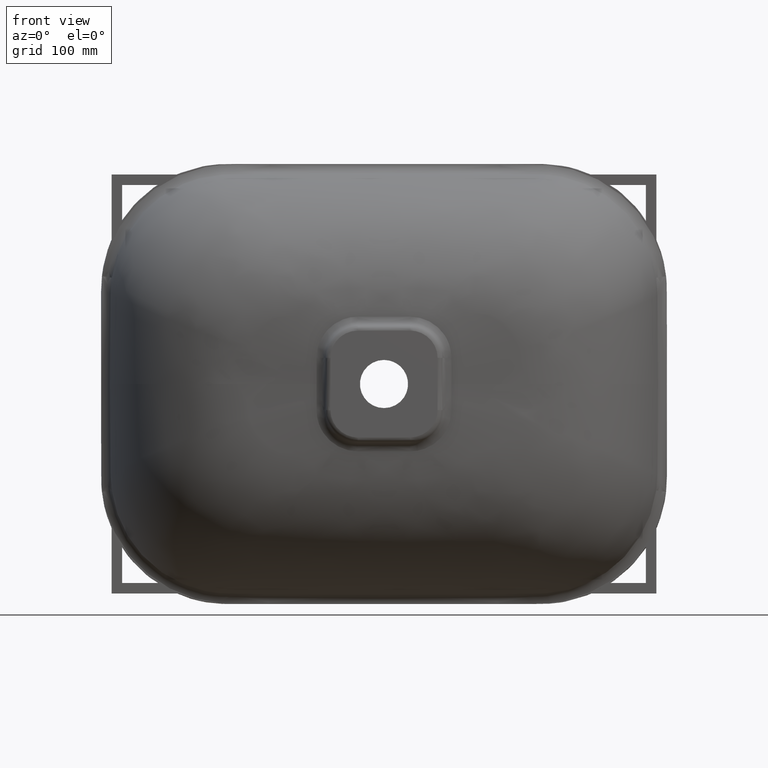
[diagram: clean part render]
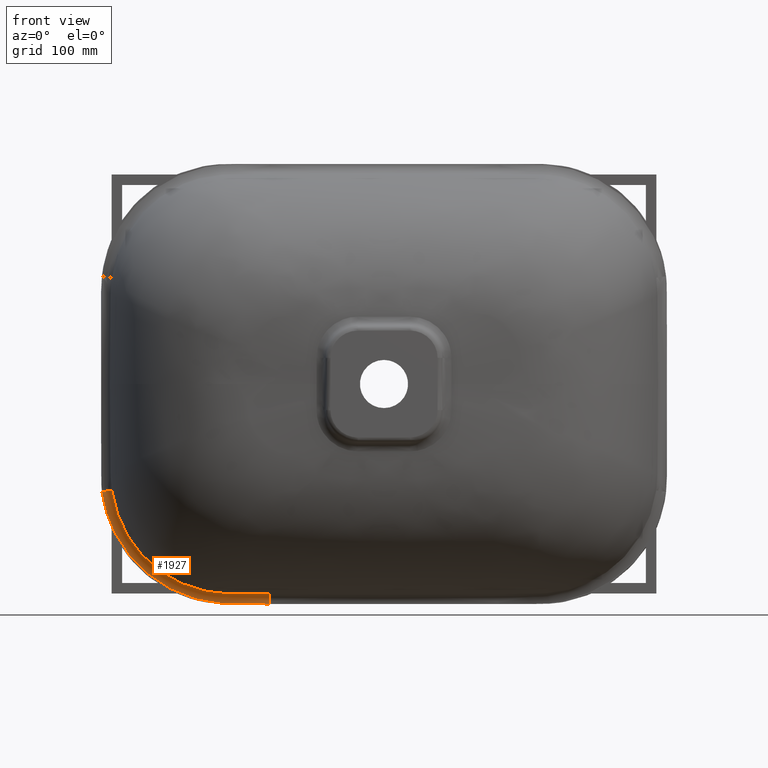
[diagram: same view with one face highlighted and labeled with its STEP entity id]
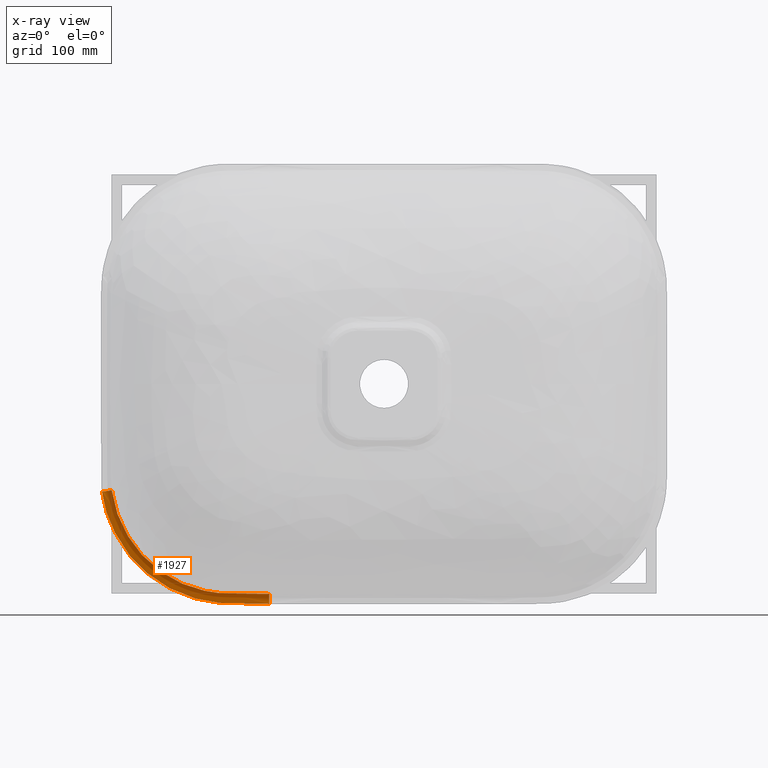
[diagram: x-ray of the same camera — body ghosted, the highlighted face saturated]
A machine part, front view. The second image highlights one B-rep face of the part: STEP entity #1927.
The next image is the same camera in x-ray: the body ghosted, the highlighted face saturated — about 0% of this face is hidden behind the body in this view.
In plain terms, the highlighted face is a freeform B-spline surface patch.
Its self-contained STEP definition (entity closure, byte-faithful):
#71 = CARTESIAN_POINT ( 'NONE',  ( -117.8016387280998300, -16.99170348007772400, -200.3507997638486400 ) ) ;
#204 = CARTESIAN_POINT ( 'NONE',  ( -109.5116194334108100, -10.00000000000165000, -202.6064828579494000 ) ) ;
#401 = CARTESIAN_POINT ( 'NONE',  ( -266.1876830837388800, -10.00000000000066300, -118.0187709172529900 ) ) ;
#781 = CARTESIAN_POINT ( 'NONE',  ( -109.6120045407091700, -10.00000000000165000, -210.0000000009303600 ) ) ;
#1927 = ADVANCED_FACE ( 'NONE', ( #33023 ), #12217, .F. ) ;
#2313 = CARTESIAN_POINT ( 'NONE',  ( -173.8054501678713800, -9.999999999999474200, -206.4255198055541900 ) ) ;
#2386 = CARTESIAN_POINT ( 'NONE',  ( -138.4216120602847900, -10.00000000000011000, -209.5667401965243600 ) ) ;
#2504 = CARTESIAN_POINT ( 'NONE',  ( -209.1148610316308800, -10.00000000000246700, -192.6709876918988300 ) ) ;
#2583 = CARTESIAN_POINT ( 'NONE',  ( -174.9085459541390700, -9.999999999996797200, -206.1738584481921900 ) ) ;
#2706 = CARTESIAN_POINT ( 'NONE',  ( -194.5000986328645900, -9.999999997041664200, -192.7833520702375600 ) ) ;
#2781 = CARTESIAN_POINT ( 'NONE',  ( -243.5980267796259400, -10.00000000000266600, -162.7003143809995700 ) ) ;
#2904 = CARTESIAN_POINT ( 'NONE',  ( -216.5455881784242000, -10.00000000103960900, -180.0151697739314000 ) ) ;
#2976 = CARTESIAN_POINT ( 'NONE',  ( -264.5843226852293200, -10.00000000000050100, -123.3809819152538700 ) ) ;
#3096 = CARTESIAN_POINT ( 'NONE',  ( -148.7786146739838100, -16.63001373807655300, -199.9749490811586000 ) ) ;
#3299 = CARTESIAN_POINT ( 'NONE',  ( -148.5419344983056100, -16.63345981610454800, -199.9778266059107400 ) ) ;
#3985 = CARTESIAN_POINT ( 'NONE',  ( -236.4127754794706700, -16.01407864590316900, -157.0001735292096300 ) ) ;
#4013 = VERTEX_POINT ( 'NONE', #35843 ) ;
#4034 = CARTESIAN_POINT ( 'NONE',  ( -240.2199632549563000, -16.06348631989333200, -151.9077543122950800 ) ) ;
#4178 = CARTESIAN_POINT ( 'NONE',  ( -261.4885423727412800, -9.999999972678796900, -105.9181486950502900 ) ) ;
#4227 = CARTESIAN_POINT ( 'NONE',  ( -208.5311982345085400, -15.93603661310545900, -182.2298427479464900 ) ) ;
#4351 = CARTESIAN_POINT ( 'NONE',  ( -118.4768675996696200, -10.00000000000165000, -209.8796377724916600 ) ) ;
#4413 = CARTESIAN_POINT ( 'NONE',  ( -163.5340420470743100, -16.38050254530081100, -198.9261056051077800 ) ) ;
#4542 = CARTESIAN_POINT ( 'NONE',  ( -118.3384036264261400, -16.98667808527179800, -200.3450522701606900 ) ) ;
#4743 = CARTESIAN_POINT ( 'NONE',  ( -268.6792162120060500, -9.999999999999955600, -107.2329245653158700 ) ) ;
#4930 = CARTESIAN_POINT ( 'NONE',  ( -109.4822025118279800, -17.06959305274223500, -200.4398814579021500 ) ) ;
#4939 = CARTESIAN_POINT ( 'NONE',  ( -259.3495257307811200, -9.999999997512675900, -116.1525617619242300 ) ) ;
#5124 = CARTESIAN_POINT ( 'NONE',  ( -147.9537338392405600, -16.64110222036643800, -199.9852891002940700 ) ) ;
#5133 = CARTESIAN_POINT ( 'NONE',  ( -256.9624051473673500, -10.00000000132275200, -124.2925172517322200 ) ) ;
#5209 = EDGE_CURVE ( 'NONE', #47749, #31597, #47929, .T. ) ;
#5510 = CARTESIAN_POINT ( 'NONE',  ( -143.8017923498996400, -16.69412587289311700, -200.0376688555597000 ) ) ;
#5519 = AXIS2_PLACEMENT_3D ( 'NONE', #21327, #52966, #25859 ) ;
#6658 = CARTESIAN_POINT ( 'NONE',  ( -148.7398844826651300, -9.999999999999625200, -209.3920935185998600 ) ) ;
#6688 = EDGE_CURVE ( 'NONE', #47749, #4013, #26618, .T. ) ;
#6856 = CARTESIAN_POINT ( 'NONE',  ( -211.5851025189352300, -15.92469634867683600, -180.2978788117623300 ) ) ;
#6931 = CARTESIAN_POINT ( 'NONE',  ( -145.6236562328544700, -10.00000000000130000, -209.4458424572504800 ) ) ;
#7056 = CARTESIAN_POINT ( 'NONE',  ( -149.0168798870068700, -10.00000000000008000, -209.3872221849773900 ) ) ;
#7130 = CARTESIAN_POINT ( 'NONE',  ( -184.6790640959575000, -10.00000000000109100, -203.5520617297348200 ) ) ;
#7251 = CARTESIAN_POINT ( 'NONE',  ( -148.8865564934678200, -9.999999999921064000, -202.3474294311918100 ) ) ;
#7324 = CARTESIAN_POINT ( 'NONE',  ( -245.6661493753830100, -10.00000000000154200, -160.0191108658193000 ) ) ;
#7448 = CARTESIAN_POINT ( 'NONE',  ( -181.8596223614519800, -16.13773388705002500, -194.7630775268472700 ) ) ;
#7523 = CARTESIAN_POINT ( 'NONE',  ( -266.1876830832137000, -10.00000000000162400, -118.0187709170891300 ) ) ;
#7648 = CARTESIAN_POINT ( 'NONE',  ( -165.6572444263224200, -16.35001478613514800, -198.5465311759854500 ) ) ;
#7847 = CARTESIAN_POINT ( 'NONE',  ( -189.6385111572564300, -16.05800541323567600, -191.9904802828172000 ) ) ;
#8528 = CARTESIAN_POINT ( 'NONE',  ( -257.9280250279666700, -10.00000000147143100, -121.2461367372699200 ) ) ;
#8576 = CARTESIAN_POINT ( 'NONE',  ( -237.7203969891634800, -16.02969535065867700, -155.3092264220391600 ) ) ;
#8719 = CARTESIAN_POINT ( 'NONE',  ( -258.8177413980186000, -9.999999997059303400, -118.1917177340851900 ) ) ;
#8769 = CARTESIAN_POINT ( 'NONE',  ( -203.1210154313859800, -15.95828084176517700, -185.5598042001395500 ) ) ;
#8907 = CARTESIAN_POINT ( 'NONE',  ( -263.1294971624770900, -10.00000000000054200, -127.6534677739095100 ) ) ;
#8958 = CARTESIAN_POINT ( 'NONE',  ( -155.2328427687638500, -16.51555964424655800, -199.7380293915275000 ) ) ;
#9089 = CARTESIAN_POINT ( 'NONE',  ( -140.4803075271075300, -16.73548169320614000, -200.0791925795082600 ) ) ;
#9099 = CARTESIAN_POINT ( 'NONE',  ( -254.8491918782976300, -10.00000000346020500, -130.3089819761897000 ) ) ;
#9288 = CARTESIAN_POINT ( 'NONE',  ( -259.2973419781409300, -16.95845430867373000, -105.5435066344179100 ) ) ;
#9471 = CARTESIAN_POINT ( 'NONE',  ( -147.9946571289898100, -9.999999999939005200, -202.3532079439271200 ) ) ;
#9480 = CARTESIAN_POINT ( 'NONE',  ( -254.3260934436163400, -16.47574737579324000, -124.4774150050024600 ) ) ;
#9666 = CARTESIAN_POINT ( 'NONE',  ( -146.6101417837067800, -10.00000000021397500, -202.3628906392257500 ) ) ;
#9858 = CARTESIAN_POINT ( 'NONE',  ( -148.2305337309212200, -16.63751169970567300, -199.9817791134661000 ) ) ;
#11196 = CARTESIAN_POINT ( 'NONE',  ( -148.7052598236745100, -10.00000000000101800, -209.3926942235514400 ) ) ;
#11391 = CARTESIAN_POINT ( 'NONE',  ( -200.8750934421080400, -15.97121272111377100, -186.7838058844532400 ) ) ;
#11465 = CARTESIAN_POINT ( 'NONE',  ( -148.3936381309607400, -10.00000000000068900, -209.3981089462623100 ) ) ;
#11586 = CARTESIAN_POINT ( 'NONE',  ( -148.7232007899408200, -9.999999999989471500, -202.3479923965037100 ) ) ;
#11662 = CARTESIAN_POINT ( 'NONE',  ( -197.1762204767231300, -10.00000000000260100, -198.7835304471154200 ) ) ;
#11755 = VERTEX_POINT ( 'NONE', #47000 ) ;
#11785 = CARTESIAN_POINT ( 'NONE',  ( -182.6388328435805300, -9.999999990466752900, -197.2141746391034500 ) ) ;
#11860 = CARTESIAN_POINT ( 'NONE',  ( -248.3093753856685500, -9.999999999999984000, -156.3841395375632100 ) ) ;
#11987 = CARTESIAN_POINT ( 'NONE',  ( -205.8319414925217600, -10.00000000519215200, -187.0461295086295800 ) ) ;
#12058 = CARTESIAN_POINT ( 'NONE',  ( -268.6792188953581900, -9.999999999999149100, -107.2329058983216300 ) ) ;
#12179 = CARTESIAN_POINT ( 'NONE',  ( -193.4418688747361200, -16.02464114695278100, -190.3952824065494800 ) ) ;
#12217 =( BOUNDED_SURFACE ( )  B_SPLINE_SURFACE ( 3, 2, ( 
 ( #54695, #31355, #49956 ),
 ( #9288, #4178, #4743 ),
 ( #49203, #26444, #45024 ),
 ( #18332, #4939, #401 ),
 ( #13433, #8719, #40660 ),
 ( #35911, #8528, #40278 ),
 ( #40470, #36104, #44644 ),
 ( #45403, #5133, #31931 ),
 ( #9480, #49583, #8907 ),
 ( #31546, #9099, #49395 ),
 ( #58464, #22102, #17582 ),
 ( #27205, #35716, #32123 ),
 ( #13244, #22484, #17771 ),
 ( #13813, #54499, #44834 ),
 ( #50151, #30978, #54122 ),
 ( #14008, #35529, #31739 ),
 ( #27394, #45211, #36486 ),
 ( #40854, #13054, #36293 ),
 ( #3985, #27587, #18143 ),
 ( #18523, #53549, #17959 ),
 ( #27014, #43165, #15721 ),
 ( #29496, #52863, #20440 ),
 ( #15914, #12374, #43563 ),
 ( #57401, #2904, #51874 ),
 ( #6856, #43956, #43363 ),
 ( #47923, #11987, #2504 ),
 ( #11391, #52665, #30289 ),
 ( #12179, #2706, #29300 ),
 ( #7847, #34250, #16705 ),
 ( #7448, #11785, #25563 ),
 ( #38999, #48126, #47329 ),
 ( #21029, #25162, #42968 ),
 ( #39398, #52469, #2313 ),
 ( #56607, #57205, #24963 ),
 ( #25365, #34053, #47723 ),
 ( #7648, #33655, #52066 ),
 ( #29693, #43761, #16899 ),
 ( #34848, #24768, #21227 ),
 ( #56803, #57007, #56412 ),
 ( #39198, #38604, #34447 ),
 ( #38204, #34646, #38804 ),
 ( #47528, #7251, #7056 ),
 ( #3096, #29892, #20634 ),
 ( #52266, #11586, #16308 ),
 ( #38402, #16504, #16110 ),
 ( #30089, #20832, #6658 ),
 ( #3299, #33853, #11196 ),
 ( #9858, #41235, #18514 ),
 ( #5124, #9471, #54879 ),
 ( #27196, #58452, #40651 ),
 ( #41040, #9666, #23239 ),
 ( #36477, #18903, #23433 ),
 ( #5510, #26813, #22849 ),
 ( #9089, #27003, #22664 ),
 ( #31536, #18323, #45588 ),
 ( #55075, #32313, #54490 ),
 ( #4542, #40458, #4351 ),
 ( #4930, #204, #781 ) ),
 .UNSPECIFIED., .F., .F., .F. ) 
 B_SPLINE_SURFACE_WITH_KNOTS ( ( 4, 2, 2, 2, 2, 2, 2, 2, 2, 2, 2, 2, 2, 2, 2, 2, 2, 2, 2, 2, 2, 2, 2, 2, 2, 2, 2, 2, 4 ),
 ( 3, 3 ),
 ( 0.2131028846853375000, 0.2262844475938892700, 0.2328752290481651600, 0.2361706197753030700, 0.2394660105024410100, 0.2526475734109927500, 0.2658291363195445200, 0.2724199177738204100, 0.2757153085009583800, 0.2790106992280962900, 0.2921922621366480600, 0.3053738250451998300, 0.3185553879537515500, 0.3317369508623032600, 0.3449185137708550300, 0.3581000766794068000, 0.3613954674065447100, 0.3646908581336826800, 0.3712816395879585700, 0.3844632024965103400, 0.3848751263374025600, 0.3850810882578487000, 0.3851840692180717500, 0.3852870501782947900, 0.3861108978600792900, 0.3877585932236482500, 0.3910539839507862200, 0.3976447654050621100, 0.4240078912221655900 ),
 ( 0.0000000000000000000, 1.000000000000000000 ),
 .UNSPECIFIED. ) 
 GEOMETRIC_REPRESENTATION_ITEM ( )  RATIONAL_B_SPLINE_SURFACE ( (
 ( 1.000000000000000000, 0.8041213644005464900, 1.000000000000000000),
 ( 1.000000000000000000, 0.8075153276364069900, 1.000000000000000000),
 ( 1.000000000000000000, 0.8110213399071208900, 1.000000000000000000),
 ( 1.000000000000000000, 0.8158844865106138500, 1.000000000000000000),
 ( 1.000000000000000000, 0.8174372256748035900, 1.000000000000000000),
 ( 1.000000000000000000, 0.8196181977845368200, 1.000000000000000000),
 ( 1.000000000000000000, 0.8203207103774314800, 1.000000000000000000),
 ( 1.000000000000000000, 0.8216732689038605000, 1.000000000000000000),
 ( 1.000000000000000000, 0.8223217210596793800, 1.000000000000000000),
 ( 1.000000000000000000, 0.8254110462344926800, 1.000000000000000000),
 ( 1.000000000000000000, 0.8274047738713560300, 1.000000000000000000),
 ( 1.000000000000000000, 0.8306891015027521000, 1.000000000000000000),
 ( 1.000000000000000000, 0.8320975991429976300, 1.000000000000000000),
 ( 1.000000000000000000, 0.8339464462914987200, 1.000000000000000000),
 ( 1.000000000000000000, 0.8345140238758476100, 1.000000000000000000),
 ( 1.000000000000000000, 0.8352940136438231600, 1.000000000000000000),
 ( 1.000000000000000000, 0.8355421023820029900, 1.000000000000000000),
 ( 1.000000000000000000, 0.8360145804861104400, 1.000000000000000000),
 ( 1.000000000000000000, 0.8362392675164316300, 1.000000000000000000),
 ( 1.000000000000000000, 0.8372980709974982000, 1.000000000000000000),
 ( 1.000000000000000000, 0.8379463673336831100, 1.000000000000000000),
 ( 1.000000000000000000, 0.8388401449896107900, 1.000000000000000000),
 ( 1.000000000000000000, 0.8390625011359540400, 1.000000000000000000),
 ( 1.000000000000000000, 0.8390959246226334900, 1.000000000000000000),
 ( 1.000000000000000000, 0.8389072287976098200, 1.000000000000000000),
 ( 1.000000000000000000, 0.8381167587727960100, 1.000000000000000000),
 ( 1.000000000000000000, 0.8375201497139113100, 1.000000000000000000),
 ( 1.000000000000000000, 0.8359237881556613700, 1.000000000000000000),
 ( 1.000000000000000000, 0.8349258402214812000, 1.000000000000000000),
 ( 1.000000000000000000, 0.8325351248301111600, 1.000000000000000000),
 ( 1.000000000000000000, 0.8311428734712587000, 1.000000000000000000),
 ( 1.000000000000000000, 0.8291507832483209200, 1.000000000000000000),
 ( 1.000000000000000000, 0.8287392979024217300, 1.000000000000000000),
 ( 1.000000000000000000, 0.8278962073218848500, 1.000000000000000000),
 ( 1.000000000000000000, 0.8274640028257238500, 1.000000000000000000),
 ( 1.000000000000000000, 0.8261356092172972300, 1.000000000000000000),
 ( 1.000000000000000000, 0.8252076766426734700, 1.000000000000000000),
 ( 1.000000000000000000, 0.8222970722090772200, 1.000000000000000000),
 ( 1.000000000000000000, 0.8201881323851676300, 1.000000000000000000),
 ( 1.000000000000000000, 0.8178330706254070000, 1.000000000000000000),
 ( 1.000000000000000000, 0.8177615337506701800, 1.000000000000000000),
 ( 1.000000000000000000, 0.8176539708815412400, 1.000000000000000000),
 ( 1.000000000000000000, 0.8176180736684448600, 1.000000000000000000),
 ( 1.000000000000000000, 0.8175641633958007400, 1.000000000000000000),
 ( 1.000000000000000000, 0.8175540253386760500, 1.000000000000000000),
 ( 1.000000000000000000, 0.8175264696394249900, 1.000000000000000000),
 ( 1.000000000000000000, 0.8175126967720817200, 1.000000000000000000),
 ( 1.000000000000000000, 0.8173887858007357100, 1.000000000000000000),
 ( 1.000000000000000000, 0.8172789615364874900, 1.000000000000000000),
 ( 1.000000000000000000, 0.8169504449253653900, 1.000000000000000000),
 ( 1.000000000000000000, 0.8167327087533041700, 1.000000000000000000),
 ( 1.000000000000000000, 0.8160833222697828600, 1.000000000000000000),
 ( 1.000000000000000000, 0.8156554940915218300, 1.000000000000000000),
 ( 1.000000000000000000, 0.8143872728768764000, 1.000000000000000000),
 ( 1.000000000000000000, 0.8135621442735012600, 1.000000000000000000),
 ( 1.000000000000000000, 0.8095378421619058300, 1.000000000000000000),
 ( 1.000000000000000000, 0.8066428148032114300, 1.000000000000000000),
 ( 1.000000000000000000, 0.8040648900200597600, 1.000000000000000000) ) ) 
 REPRESENTATION_ITEM ( '' )  SURFACE ( )  );
#12374 = CARTESIAN_POINT ( 'NONE',  ( -223.1610761525828900, -9.999999998956273100, -174.7390038793268200 ) ) ;
#12914 = CARTESIAN_POINT ( 'NONE',  ( -256.9860576998154900, -16.67723593418660900, -115.9068813281692500 ) ) ;
#13054 = CARTESIAN_POINT ( 'NONE',  ( -239.1183778347489700, -9.999999999420698100, -157.7781398106820100 ) ) ;
#13102 = CARTESIAN_POINT ( 'NONE',  ( -235.7641173143867900, -16.00687544312196300, -157.8154648446519600 ) ) ;
#13244 = CARTESIAN_POINT ( 'NONE',  ( -245.2522267956507800, -16.15230209334172100, -144.1821715917601200 ) ) ;
#13296 = CARTESIAN_POINT ( 'NONE',  ( -191.8373525268733300, -16.03818251917640900, -191.0904909839815700 ) ) ;
#13433 = CARTESIAN_POINT ( 'NONE',  ( -256.5401067996414800, -16.63596992005026500, -117.5326423267994500 ) ) ;
#13485 = CARTESIAN_POINT ( 'NONE',  ( -151.0770393606699400, -16.58829097582326300, -199.9303923428020700 ) ) ;
#13813 = CARTESIAN_POINT ( 'NONE',  ( -241.9178176078008600, -16.09067409092895300, -149.4169302200866400 ) ) ;
#14008 = CARTESIAN_POINT ( 'NONE',  ( -238.9387544878391600, -16.04567956633336600, -153.6720030328451700 ) ) ;
#15106 = B_SPLINE_CURVE_WITH_KNOTS ( 'NONE', 3,
 ( #53408, #57946, #39944, #12914, #44502, #17441, #49063, #21960, #53599, #26491, #58134, #31026, #4034, #35576, #8576, #40136, #13102, #44692, #17631, #49254, #22151, #53790, #26686, #58324, #31218, #4227, #35770, #8769, #40328, #13296, #44885, #17821, #49445, #22345, #53983, #26875, #58515, #31406, #4413, #35961, #8958, #40519, #13485, #45074, #18008, #49631, #22535, #54171, #27062, #71, #31596 ),
 .UNSPECIFIED., .F., .F.,
 ( 4, 2, 2, 2, 2, 2, 2, 2, 2, 2, 2, 2, 2, 2, 2, 2, 2, 2, 2, 2, 2, 2, 2, 1, 2, 4 ),
 ( 0.01473164428857015900, 0.02730021648599836900, 0.03358450258471247500, 0.03986878868342658100, 0.05243736088085479400, 0.06500593307828300700, 0.07129021917699714100, 0.07443236222635421500, 0.07757450527571128900, 0.09014307747313959900, 0.1027116496705679100, 0.1089959357692820700, 0.1121380788186391600, 0.1152802218679962200, 0.1278487940654247900, 0.1404173662628533700, 0.1467016523615676500, 0.1498437954109248500, 0.1529859384602820500, 0.1655545106577107600, 0.1718387967564251100, 0.1749809398057823000, 0.1765520113304608900, 0.1781230828551394800, 0.1906916550525683500, 0.2158287994474262200 ),
 .UNSPECIFIED. ) ;
#15721 = CARTESIAN_POINT ( 'NONE',  ( -237.0488428557266900, -9.999999999999913000, -170.4132986883529100 ) ) ;
#15752 = EDGE_CURVE ( 'NONE', #4013, #11755, #57098, .T. ) ;
#15913 = CARTESIAN_POINT ( 'NONE',  ( -109.6120045407091400, -10.00000000000000200, -210.0000000009307300 ) ) ;
#15914 = CARTESIAN_POINT ( 'NONE',  ( -221.4369880997964500, -15.91948238834250700, -172.7298776125344700 ) ) ;
#15989 = CARTESIAN_POINT ( 'NONE',  ( -153.9329004716066400, -9.999999999999928900, -209.2779673755296100 ) ) ;
#16110 = CARTESIAN_POINT ( 'NONE',  ( -148.8091337920623400, -9.999999999999625200, -209.3908918070756900 ) ) ;
#16188 = CARTESIAN_POINT ( 'NONE',  ( -209.1148610321888600, -10.00000000000174800, -192.6709876935821900 ) ) ;
#16308 = CARTESIAN_POINT ( 'NONE',  ( -148.8437584750936100, -10.00000000000268900, -209.3902919477339400 ) ) ;
#16382 = CARTESIAN_POINT ( 'NONE',  ( -253.1954835947514100, -10.00000000000035700, -148.8950832087181200 ) ) ;
#16504 = CARTESIAN_POINT ( 'NONE',  ( -148.6869007875098700, -10.00000000002398800, -202.3483579754866900 ) ) ;
#16705 = CARTESIAN_POINT ( 'NONE',  ( -193.0724228810933000, -9.999999999996791900, -200.5216890741281200 ) ) ;
#16899 = CARTESIAN_POINT ( 'NONE',  ( -164.9841687011409600, -9.999999999998186300, -208.0789055372788100 ) ) ;
#17441 = CARTESIAN_POINT ( 'NONE',  ( -255.1902256561069500, -16.52999565143963400, -121.9757729441866900 ) ) ;
#17582 = CARTESIAN_POINT ( 'NONE',  ( -259.3879961744596600, -9.999999999997831100, -137.0393946880648200 ) ) ;
#17631 = CARTESIAN_POINT ( 'NONE',  ( -229.5779419126271000, -15.95146410192755900, -164.9993988289622800 ) ) ;
#17771 = CARTESIAN_POINT ( 'NONE',  ( -253.1954835948473300, -10.00000000000072500, -148.8950832091688600 ) ) ;
#17821 = CARTESIAN_POINT ( 'NONE',  ( -182.0051432208347500, -16.13747978960454100, -194.6583069065262600 ) ) ;
#17959 = CARTESIAN_POINT ( 'NONE',  ( -240.0518677389907800, -10.00000000000022600, -167.0878711474472600 ) ) ;
#18008 = CARTESIAN_POINT ( 'NONE',  ( -148.9978220466282200, -16.62752934182176600, -199.9720406079785600 ) ) ;
#18083 = ORIENTED_EDGE ( 'NONE', *, *, #25594, .F. ) ;
#18143 = CARTESIAN_POINT ( 'NONE',  ( -243.5980267798268800, -10.00000000000022600, -162.7003143808743500 ) ) ;
#18323 = CARTESIAN_POINT ( 'NONE',  ( -138.3018869639296900, -10.00000000122858900, -202.4204132439755600 ) ) ;
#18332 = CARTESIAN_POINT ( 'NONE',  ( -257.0822091703356000, -16.68670264702672400, -115.5402197825312100 ) ) ;
#18514 = CARTESIAN_POINT ( 'NONE',  ( -148.3936378541687000, -10.00000000000101800, -209.3980992095824300 ) ) ;
#18523 = CARTESIAN_POINT ( 'NONE',  ( -233.1406579080853000, -15.97865315658936500, -161.0732120119556300 ) ) ;
#18903 = CARTESIAN_POINT ( 'NONE',  ( -144.9484274715583200, -9.999999999567894100, -202.3744820837881400 ) ) ;
#20319 = CARTESIAN_POINT ( 'NONE',  ( -109.6120045407091400, -10.00000000000000200, -210.0000000009307300 ) ) ;
#20440 = CARTESIAN_POINT ( 'NONE',  ( -230.7156832148573600, -9.999999999999913000, -176.7005704943354700 ) ) ;
#20510 = CARTESIAN_POINT ( 'NONE',  ( -164.9841687008896500, -9.999999999998523800, -208.0789055372289900 ) ) ;
#20634 = CARTESIAN_POINT ( 'NONE',  ( -148.9476323089224900, -10.00000000000268900, -209.3884847981936700 ) ) ;
#20711 = CARTESIAN_POINT ( 'NONE',  ( -220.4046297625203000, -9.999999999999355200, -185.2297010855920400 ) ) ;
#20832 = CARTESIAN_POINT ( 'NONE',  ( -148.6176799623245900, -9.999999999975267800, -202.3488431598175900 ) ) ;
#20906 = CARTESIAN_POINT ( 'NONE',  ( -259.3879961736328700, -10.00000000000131300, -137.0393946878882900 ) ) ;
#21029 = CARTESIAN_POINT ( 'NONE',  ( -172.8052093186459500, -16.25018274725438900, -197.1448977281378100 ) ) ;
#21227 = CARTESIAN_POINT ( 'NONE',  ( -158.3575026893963700, -9.999999999998186300, -208.9423866400054800 ) ) ;
#21327 = CARTESIAN_POINT ( 'NONE',  ( -269.3054738966994300, -20.00000000000039100, -102.8867415546644000 ) ) ;
#21960 = CARTESIAN_POINT ( 'NONE',  ( -252.3237630072337900, -16.36363914979110800, -129.9357335054753800 ) ) ;
#22102 = CARTESIAN_POINT ( 'NONE',  ( -253.2111823765810400, -9.999999997524433600, -134.2155247558303300 ) ) ;
#22151 = CARTESIAN_POINT ( 'NONE',  ( -220.4339054301992700, -15.91800484675679300, -173.5841262310821900 ) ) ;
#22345 = CARTESIAN_POINT ( 'NONE',  ( -176.9556728743419900, -16.19713265882028000, -196.1186871309531300 ) ) ;
#22484 = CARTESIAN_POINT ( 'NONE',  ( -247.4631380129250100, -9.999999998983693000, -145.4858529562921500 ) ) ;
#22535 = CARTESIAN_POINT ( 'NONE',  ( -143.2786575361119800, -16.70157586813982000, -200.0445216195350600 ) ) ;
#22664 = CARTESIAN_POINT ( 'NONE',  ( -140.6376406008187700, -10.00000000000083300, -209.5300667440838800 ) ) ;
#22849 = CARTESIAN_POINT ( 'NONE',  ( -143.9616556478535500, -10.00000000000083300, -209.4740799302701100 ) ) ;
#22858 = AXIS2_PLACEMENT_3D ( 'NONE', #47753, #52095, #56833 ) ;
#23239 = CARTESIAN_POINT ( 'NONE',  ( -146.7316498777476000, -9.999999999998729900, -209.4267802058577400 ) ) ;
#23433 = CARTESIAN_POINT ( 'NONE',  ( -145.0696560377919900, -9.999999999998729900, -209.4552549483122200 ) ) ;
#24768 = CARTESIAN_POINT ( 'NONE',  ( -157.6977176497534300, -10.00000000074186300, -202.0493780211058100 ) ) ;
#24963 = CARTESIAN_POINT ( 'NONE',  ( -171.6017766829114900, -9.999999999999474200, -206.8967973001533100 ) ) ;
#25036 = CARTESIAN_POINT ( 'NONE',  ( -170.4994970062655600, -9.999999999998085100, -207.1168553007094600 ) ) ;
#25162 = CARTESIAN_POINT ( 'NONE',  ( -173.3782721034556000, -9.999999999733436300, -199.6073938233416500 ) ) ;
#25239 = CARTESIAN_POINT ( 'NONE',  ( -230.7156832138611500, -10.00000000000035000, -176.7005704934885800 ) ) ;
#25365 = CARTESIAN_POINT ( 'NONE',  ( -168.7209424716047300, -16.30607040351046100, -197.9955108854306600 ) ) ;
#25438 = CARTESIAN_POINT ( 'NONE',  ( -263.1294971623040600, -10.00000000000029300, -127.6534677738534800 ) ) ;
#25563 = CARTESIAN_POINT ( 'NONE',  ( -184.6790640972445200, -9.999999999996791900, -203.5520617321497500 ) ) ;
#25594 = EDGE_CURVE ( 'NONE', #11755, #31597, #15106, .T. ) ;
#25859 = DIRECTION ( 'NONE',  ( -0.9897774155219586400, 0.0000000000000000000, -0.1426207128108397900 ) ) ;
#26444 = CARTESIAN_POINT ( 'NONE',  ( -260.7739196509352800, -10.00000000500647200, -110.0148458859692900 ) ) ;
#26491 = CARTESIAN_POINT ( 'NONE',  ( -246.9087911578185100, -16.19042586122626700, -141.2658024078263000 ) ) ;
#26618 = B_SPLINE_CURVE_WITH_KNOTS ( 'NONE', 3,
 ( #20319, #47405, #29377, #2386, #33931, #6931, #38479, #11465, #43042, #15989, #47601, #20510, #52139, #25036, #56679, #29570, #2583, #34126, #7130, #38678, #11662, #43240, #16188, #47799, #20711, #52341, #25239, #56880, #29770, #2781, #34327, #7324, #38877, #11860, #43439, #16382, #48005, #20906, #52544, #25438, #57081, #29965, #2976, #34521, #7523, #39072, #12058, #43634 ),
 .UNSPECIFIED., .F., .F.,
 ( 4, 2, 1, 1, 2, 2, 2, 2, 2, 2, 2, 2, 2, 2, 2, 2, 2, 2, 2, 2, 2, 2, 2, 2, 4 ),
 ( 1.386568128191315100, 1.413091437777452400, 1.419722265173986900, 1.423037678872253900, 1.424695385721387500, 1.426353092570521000, 1.439614747363588500, 1.446245574760122400, 1.449560988458389300, 1.452876402156656000, 1.466138056949723800, 1.479399711742791300, 1.492661366535859000, 1.505923021328926500, 1.519184676121994300, 1.532446330915061800, 1.535761744613328700, 1.539077158311595600, 1.545707985708129500, 1.558969640501197500, 1.572231295294265200, 1.575546708992532100, 1.578862122690799100, 1.585492950087332900, 1.598754604880400700 ),
 .UNSPECIFIED. ) ;
#26686 = CARTESIAN_POINT ( 'NONE',  ( -213.7789019072777400, -15.92174569503857900, -178.6871189412537400 ) ) ;
#26813 = CARTESIAN_POINT ( 'NONE',  ( -143.8409362186217200, -9.999999999516646200, -202.3821816140962000 ) ) ;
#26875 = CARTESIAN_POINT ( 'NONE',  ( -173.8844039711859200, -16.23601990646226400, -196.8940318990194700 ) ) ;
#27003 = CARTESIAN_POINT ( 'NONE',  ( -140.5167269440766800, -10.00000000097070400, -202.4052000848936400 ) ) ;
#27014 = CARTESIAN_POINT ( 'NONE',  ( -230.3679753291565100, -15.95692170791296700, -164.1577912186269300 ) ) ;
#27062 = CARTESIAN_POINT ( 'NONE',  ( -126.1208194692760900, -16.90447591633308400, -200.2545051341060400 ) ) ;
#27196 = CARTESIAN_POINT ( 'NONE',  ( -147.1233364863707300, -16.65184037016420900, -199.9958086197036100 ) ) ;
#27205 = CARTESIAN_POINT ( 'NONE',  ( -247.2753690827691500, -16.19916626933721600, -140.5874223344471300 ) ) ;
#27394 = CARTESIAN_POINT ( 'NONE',  ( -238.3202449255739200, -16.03738901965994800, -154.5107172855725800 ) ) ;
#27587 = CARTESIAN_POINT ( 'NONE',  ( -238.4607282494135600, -9.999999999773123700, -158.6244536052018400 ) ) ;
#29300 = CARTESIAN_POINT ( 'NONE',  ( -197.1762204767124400, -9.999999999995379700, -198.7835304481451100 ) ) ;
#29377 = CARTESIAN_POINT ( 'NONE',  ( -127.3413721065309800, -10.00000000000010700, -209.7466865525815100 ) ) ;
#29496 = CARTESIAN_POINT ( 'NONE',  ( -224.5182999798393300, -15.92694821299372700, -169.9838349097207100 ) ) ;
#29570 = CARTESIAN_POINT ( 'NONE',  ( -173.8054501678582300, -10.00000000000006200, -206.4255198057351200 ) ) ;
#29693 = CARTESIAN_POINT ( 'NONE',  ( -163.6136954924503200, -16.38066463366946100, -198.8565741836855200 ) ) ;
#29770 = CARTESIAN_POINT ( 'NONE',  ( -240.0518677397911100, -10.00000000000266600, -167.0878711469448800 ) ) ;
#29813 = ORIENTED_EDGE ( 'NONE', *, *, #15752, .F. ) ;
#29892 = CARTESIAN_POINT ( 'NONE',  ( -148.8212133799928000, -10.00000000002912200, -202.3476880442397300 ) ) ;
#29965 = CARTESIAN_POINT ( 'NONE',  ( -264.2360848442775700, -9.999999999999326800, -124.4510558832660200 ) ) ;
#30089 = CARTESIAN_POINT ( 'NONE',  ( -148.5765345959247000, -16.63300943255041300, -199.9773873860085000 ) ) ;
#30289 = CARTESIAN_POINT ( 'NONE',  ( -205.1969357275033000, -9.999999999995379700, -194.8585886922449200 ) ) ;
#30978 = CARTESIAN_POINT ( 'NONE',  ( -242.8875080784550800, -10.00000000218951100, -152.6145076985926900 ) ) ;
#31026 = CARTESIAN_POINT ( 'NONE',  ( -241.4113043220705800, -16.08219377538909000, -150.1754442477456500 ) ) ;
#31218 = CARTESIAN_POINT ( 'NONE',  ( -210.3037531762915600, -15.93023817365917300, -181.0748077443088600 ) ) ;
#31355 = CARTESIAN_POINT ( 'NONE',  ( -261.9883173109165000, -9.999999999999953800, -101.8323852199499700 ) ) ;
#31406 = CARTESIAN_POINT ( 'NONE',  ( -167.6783750136680200, -16.31917105916489400, -198.2629391451024800 ) ) ;
#31536 = CARTESIAN_POINT ( 'NONE',  ( -138.2660277516475600, -16.76234570526763800, -200.1066051342911900 ) ) ;
#31546 = CARTESIAN_POINT ( 'NONE',  ( -252.5500696907416200, -16.37405426066768800, -129.3754608936591800 ) ) ;
#31596 = CARTESIAN_POINT ( 'NONE',  ( -109.4822025118279800, -17.06959305274151700, -200.4398814579022900 ) ) ;
#31597 = VERTEX_POINT ( 'NONE', #45657 ) ;
#31739 = CARTESIAN_POINT ( 'NONE',  ( -246.3370307732415700, -9.999999999998269800, -159.1158821625061800 ) ) ;
#31931 = CARTESIAN_POINT ( 'NONE',  ( -263.5082856913420500, -10.00000000000089200, -126.5885127549051000 ) ) ;
#32123 = CARTESIAN_POINT ( 'NONE',  ( -255.4005341855081800, -9.999999999997831100, -145.0202924491793800 ) ) ;
#32154 = ORIENTED_EDGE ( 'NONE', *, *, #5209, .T. ) ;
#32313 = CARTESIAN_POINT ( 'NONE',  ( -127.1942803622603300, -9.999999995049016400, -202.4959107654048900 ) ) ;
#33023 = FACE_OUTER_BOUND ( 'NONE', #37877, .T. ) ;
#33655 = CARTESIAN_POINT ( 'NONE',  ( -166.0649719953235000, -9.999999996715892800, -201.0029146519646000 ) ) ;
#33853 = CARTESIAN_POINT ( 'NONE',  ( -148.5830695613673500, -9.999999999983717900, -202.3490857305916400 ) ) ;
#33931 = CARTESIAN_POINT ( 'NONE',  ( -141.7456548712511900, -9.999999999997797300, -209.5117300181476300 ) ) ;
#34053 = CARTESIAN_POINT ( 'NONE',  ( -169.2000853053405400, -10.00000000163599600, -200.4561098492942500 ) ) ;
#34126 = CARTESIAN_POINT ( 'NONE',  ( -180.3895789223176400, -9.999999999996795500, -204.8444582435758400 ) ) ;
#34250 = CARTESIAN_POINT ( 'NONE',  ( -190.6031093414687200, -10.00000000949954200, -194.4049428372379100 ) ) ;
#34327 = CARTESIAN_POINT ( 'NONE',  ( -244.2971847415718700, -10.00000000000154000, -161.8106803325421200 ) ) ;
#34447 = CARTESIAN_POINT ( 'NONE',  ( -149.3631029773827900, -10.00000000000025000, -209.3803885117969500 ) ) ;
#34521 = CARTESIAN_POINT ( 'NONE',  ( -265.5830709532867200, -10.00000000000050400, -120.1668110410268800 ) ) ;
#34646 = CARTESIAN_POINT ( 'NONE',  ( -149.0825770356400400, -10.00000000015803700, -202.3464864800587300 ) ) ;
#34848 = CARTESIAN_POINT ( 'NONE',  ( -157.4801108086352600, -16.47662580469218300, -199.6186137245521800 ) ) ;
#35529 = CARTESIAN_POINT ( 'NONE',  ( -241.0354660928991000, -9.999999998903648500, -155.2143708969798600 ) ) ;
#35576 = CARTESIAN_POINT ( 'NONE',  ( -238.3550366952144100, -16.03784079633927100, -154.4641249401844300 ) ) ;
#35716 = CARTESIAN_POINT ( 'NONE',  ( -249.5173194975226900, -10.00000000246144800, -141.7999828508179400 ) ) ;
#35770 = CARTESIAN_POINT ( 'NONE',  ( -207.6335829925367000, -15.93938710843126700, -182.7969575518899300 ) ) ;
#35843 = CARTESIAN_POINT ( 'NONE',  ( -269.3054738966996500, -10.00000000000000200, -102.8867415546644800 ) ) ;
#35911 = CARTESIAN_POINT ( 'NONE',  ( -255.6408341601717500, -16.56453076892818600, -120.5140584537716800 ) ) ;
#35961 = CARTESIAN_POINT ( 'NONE',  ( -157.3091894771519300, -16.48075920754636000, -199.5780164648309400 ) ) ;
#36104 = CARTESIAN_POINT ( 'NONE',  ( -257.6165286136723600, -9.999999998676852200, -122.2623946822471800 ) ) ;
#36293 = CARTESIAN_POINT ( 'NONE',  ( -244.2971847418345100, -9.999999999998420800, -161.8106803324401100 ) ) ;
#36477 = CARTESIAN_POINT ( 'NONE',  ( -144.9089648298511900, -16.68016397032075200, -200.0237602200952600 ) ) ;
#36486 = CARTESIAN_POINT ( 'NONE',  ( -245.6661493751227300, -9.999999999998420800, -160.0191108659213600 ) ) ;
#37877 = EDGE_LOOP ( 'NONE', ( #32154, #18083, #29813, #50726 ) ) ;
#38204 = CARTESIAN_POINT ( 'NONE',  ( -149.0346600410562700, -16.62532158135104500, -199.9718008876532200 ) ) ;
#38402 = CARTESIAN_POINT ( 'NONE',  ( -148.6457348159202600, -16.63210831687050400, -199.9765088419052600 ) ) ;
#38479 = CARTESIAN_POINT ( 'NONE',  ( -147.2856467002826500, -10.00000000000069300, -209.4172490845187700 ) ) ;
#38604 = CARTESIAN_POINT ( 'NONE',  ( -149.2132629389181200, -9.999999999724982700, -202.3456350058763200 ) ) ;
#38678 = CARTESIAN_POINT ( 'NONE',  ( -193.0724228823794100, -10.00000000000109200, -200.5216890765407000 ) ) ;
#38804 = CARTESIAN_POINT ( 'NONE',  ( -149.2246176878505000, -10.00000000000008000, -209.3832608093587500 ) ) ;
#38877 = CARTESIAN_POINT ( 'NONE',  ( -246.3370307729658200, -9.999999999999980500, -159.1158821623141600 ) ) ;
#38999 = CARTESIAN_POINT ( 'NONE',  ( -177.8836389103823300, -16.18408127441063000, -195.9407732320924500 ) ) ;
#39072 = CARTESIAN_POINT ( 'NONE',  ( -267.8241722696548700, -10.00000000000162500, -111.5594142799169900 ) ) ;
#39198 = CARTESIAN_POINT ( 'NONE',  ( -149.1626787548267400, -16.62298147342431400, -199.9699851149403000 ) ) ;
#39398 = CARTESIAN_POINT ( 'NONE',  ( -171.7832484321612000, -16.26382707673999000, -197.3723972670549400 ) ) ;
#39944 = CARTESIAN_POINT ( 'NONE',  ( -258.4967572208474800, -16.83836439969660900, -109.7904234755170600 ) ) ;
#40136 = CARTESIAN_POINT ( 'NONE',  ( -236.4247507196345500, -16.01420938544912800, -156.9851841997251000 ) ) ;
#40278 = CARTESIAN_POINT ( 'NONE',  ( -264.5843226848914500, -10.00000000000333400, -123.3809819151851000 ) ) ;
#40328 = CARTESIAN_POINT ( 'NONE',  ( -199.4190684505691700, -15.98034665907514200, -187.5471600349692100 ) ) ;
#40458 = CARTESIAN_POINT ( 'NONE',  ( -118.3421146738676000, -9.999999982908303100, -202.5534473686712100 ) ) ;
#40470 = CARTESIAN_POINT ( 'NONE',  ( -255.3267023103594200, -16.54148778832506400, -121.5066889651706000 ) ) ;
#40519 = CARTESIAN_POINT ( 'NONE',  ( -152.1162495070872500, -16.56984709423372900, -199.8929454693114300 ) ) ;
#40651 = CARTESIAN_POINT ( 'NONE',  ( -147.2856467003087200, -10.00000000000097500, -209.4172490844806300 ) ) ;
#40660 = CARTESIAN_POINT ( 'NONE',  ( -265.5830709539604300, -10.00000000000333400, -120.1668110411634300 ) ) ;
#40854 = CARTESIAN_POINT ( 'NONE',  ( -237.0577513719767600, -16.02159353992641000, -156.1742023251534000 ) ) ;
#41040 = CARTESIAN_POINT ( 'NONE',  ( -146.5697413470137200, -16.65895458637069400, -200.0028077098928100 ) ) ;
#41235 = CARTESIAN_POINT ( 'NONE',  ( -148.2715393227246400, -10.00000000013944800, -202.3512689310725000 ) ) ;
#42968 = CARTESIAN_POINT ( 'NONE',  ( -174.9085459541564100, -9.999999999999683800, -206.1738584482726500 ) ) ;
#43042 = CARTESIAN_POINT ( 'NONE',  ( -148.9476668415246100, -9.999999999999923600, -209.3896995241130700 ) ) ;
#43165 = CARTESIAN_POINT ( 'NONE',  ( -232.2932164686446300, -10.00000000455369600, -165.9570241976967700 ) ) ;
#43240 = CARTESIAN_POINT ( 'NONE',  ( -205.1969357274902000, -10.00000000000259700, -194.8585886932714000 ) ) ;
#43363 = CARTESIAN_POINT ( 'NONE',  ( -216.7530178146541900, -10.00000000000246700, -187.8342228131340100 ) ) ;
#43439 = CARTESIAN_POINT ( 'NONE',  ( -249.5705841449298800, -10.00000000000036100, -154.5335937991697200 ) ) ;
#43563 = CARTESIAN_POINT ( 'NONE',  ( -227.3859936571869300, -9.999999999997935900, -179.6629096003209700 ) ) ;
#43634 = CARTESIAN_POINT ( 'NONE',  ( -269.3054738966996500, -10.00000000000000200, -102.8867415546644800 ) ) ;
#43761 = CARTESIAN_POINT ( 'NONE',  ( -163.9751620067281400, -9.999999999627656100, -201.3077931055281600 ) ) ;
#43956 = CARTESIAN_POINT ( 'NONE',  ( -213.0795075589674900, -9.999999994817674300, -182.4811231814713000 ) ) ;
#44502 = CARTESIAN_POINT ( 'NONE',  ( -256.4261800689025700, -16.62590312899322200, -117.9362977063937200 ) ) ;
#44644 = CARTESIAN_POINT ( 'NONE',  ( -264.2360848445471200, -10.00000000000089200, -124.4510558834361800 ) ) ;
#44692 = CARTESIAN_POINT ( 'NONE',  ( -232.4159399088827600, -15.97242701826384300, -161.9048231039700200 ) ) ;
#44834 = CARTESIAN_POINT ( 'NONE',  ( -249.5705841448818800, -10.00000000000072500, -154.5335937989442200 ) ) ;
#44885 = CARTESIAN_POINT ( 'NONE',  ( -187.9576134580100900, -16.07390206559116000, -192.6465396110082800 ) ) ;
#45024 = CARTESIAN_POINT ( 'NONE',  ( -267.8241722686053700, -10.00000000000066300, -111.5594142795881000 ) ) ;
#45074 = CARTESIAN_POINT ( 'NONE',  ( -149.5177064415426300, -16.61648304953990200, -199.9653097060825400 ) ) ;
#45211 = CARTESIAN_POINT ( 'NONE',  ( -240.4052293183400500, -10.00000000057649700, -156.0737424545443400 ) ) ;
#45403 = CARTESIAN_POINT ( 'NONE',  ( -254.6689836716516900, -16.49706993171659500, -123.4894933716244900 ) ) ;
#45588 = CARTESIAN_POINT ( 'NONE',  ( -138.4216120601199100, -9.999999999997589500, -209.5667401963364400 ) ) ;
#45657 = CARTESIAN_POINT ( 'NONE',  ( -109.4822025118279800, -17.06959305274151700, -200.4398814579022900 ) ) ;
#47000 = CARTESIAN_POINT ( 'NONE',  ( -259.8427635539250100, -17.06777662629305700, -101.5232243910632400 ) ) ;
#47329 = CARTESIAN_POINT ( 'NONE',  ( -180.3895789222474700, -9.999999999999683800, -204.8444582432501000 ) ) ;
#47405 = CARTESIAN_POINT ( 'NONE',  ( -118.4768672654701500, -9.999999999999483100, -209.8796377729681500 ) ) ;
#47528 = CARTESIAN_POINT ( 'NONE',  ( -148.8426266774120300, -16.62883970366685200, -199.9742023122340400 ) ) ;
#47601 = CARTESIAN_POINT ( 'NONE',  ( -158.3575026899003400, -9.999999999998525600, -208.9423866401045000 ) ) ;
#47723 = CARTESIAN_POINT ( 'NONE',  ( -170.4994970061121600, -9.999999999997715600, -207.1168553003141400 ) ) ;
#47749 = VERTEX_POINT ( 'NONE', #15913 ) ;
#47753 = CARTESIAN_POINT ( 'NONE',  ( -109.6120045407091500, -20.00000000000056500, -210.0000000009306100 ) ) ;
#47799 = CARTESIAN_POINT ( 'NONE',  ( -216.7530178140968400, -10.00000000000174600, -187.8342228114509000 ) ) ;
#47923 = CARTESIAN_POINT ( 'NONE',  ( -204.5054156853491600, -15.95120910246265400, -184.7670497451534300 ) ) ;
#47929 = CIRCLE ( 'NONE', #22858, 10.00000000000001100 ) ;
#48005 = CARTESIAN_POINT ( 'NONE',  ( -255.4005341863334600, -10.00000000000131500, -145.0202924493546600 ) ) ;
#48126 = CARTESIAN_POINT ( 'NONE',  ( -178.5669296155452600, -10.00000000106211200, -198.4021728745246400 ) ) ;
#49063 = CARTESIAN_POINT ( 'NONE',  ( -254.5121059208445000, -16.48535943722642800, -123.9905027089952500 ) ) ;
#49203 = CARTESIAN_POINT ( 'NONE',  ( -258.5431371626502300, -16.84509795303799300, -109.5513750790009200 ) ) ;
#49254 = CARTESIAN_POINT ( 'NONE',  ( -223.5865111130678400, -15.92406017241739300, -170.8385909305046400 ) ) ;
#49395 = CARTESIAN_POINT ( 'NONE',  ( -261.1706686181742000, -10.00000000000054200, -132.9334305615499500 ) ) ;
#49445 = CARTESIAN_POINT ( 'NONE',  ( -179.9988003290517000, -16.16034093404661200, -195.2750752221304300 ) ) ;
#49583 = CARTESIAN_POINT ( 'NONE',  ( -256.6204733348707200, -9.999999999132379400, -125.3042218342980000 ) ) ;
#49631 = CARTESIAN_POINT ( 'NONE',  ( -147.9579749640728900, -16.64105665305351100, -199.9852381542417600 ) ) ;
#49956 = CARTESIAN_POINT ( 'NONE',  ( -269.3054738966994800, -9.999999999999955600, -102.8867415546643400 ) ) ;
#50151 = CARTESIAN_POINT ( 'NONE',  ( -240.7564422469322400, -16.07173228903773700, -151.1353528177030500 ) ) ;
#50726 = ORIENTED_EDGE ( 'NONE', *, *, #6688, .F. ) ;
#51874 = CARTESIAN_POINT ( 'NONE',  ( -220.4046297626470900, -9.999999999997935900, -185.2297010850882700 ) ) ;
#52066 = CARTESIAN_POINT ( 'NONE',  ( -167.1913476645573000, -9.999999999997715600, -207.7309374912199200 ) ) ;
#52095 = DIRECTION ( 'NONE',  ( 0.9999078391714785200, -1.538376962620040300E-015, -0.01357619841579238800 ) ) ;
#52139 = CARTESIAN_POINT ( 'NONE',  ( -167.1913476642476200, -9.999999999998083300, -207.7309374904294800 ) ) ;
#52266 = CARTESIAN_POINT ( 'NONE',  ( -148.6825953452840600, -16.63177678106670900, -199.9759886777770800 ) ) ;
#52341 = CARTESIAN_POINT ( 'NONE',  ( -227.3859936573134300, -9.999999999999360500, -179.6629095998163500 ) ) ;
#52469 = CARTESIAN_POINT ( 'NONE',  ( -172.3326877888422400, -10.00000000049276300, -199.8349348546440500 ) ) ;
#52544 = CARTESIAN_POINT ( 'NONE',  ( -261.1706686188665000, -10.00000000000029500, -132.9334305617744000 ) ) ;
#52665 = CARTESIAN_POINT ( 'NONE',  ( -202.1122238382930300, -10.00000000294347800, -189.1047095321448000 ) ) ;
#52863 = CARTESIAN_POINT ( 'NONE',  ( -226.3137405610488300, -9.999999995451009500, -171.9260469851138900 ) ) ;
#52966 = DIRECTION ( 'NONE',  ( 0.1426207128108403200, 0.0000000000000000000, -0.9897774155219587500 ) ) ;
#53408 = CARTESIAN_POINT ( 'NONE',  ( -259.8427635539250100, -17.06777662629305700, -101.5232243910632400 ) ) ;
#53549 = CARTESIAN_POINT ( 'NONE',  ( -235.1258435380780200, -10.00000000090748000, -162.7945027767940500 ) ) ;
#53599 = CARTESIAN_POINT ( 'NONE',  ( -250.6553473828744800, -16.29818292595488700, -133.7861586788783900 ) ) ;
#53790 = CARTESIAN_POINT ( 'NONE',  ( -215.4718903106159500, -15.91948257348340500, -177.4438084063756100 ) ) ;
#53983 = CARTESIAN_POINT ( 'NONE',  ( -175.9356925395391900, -16.20981369978564900, -196.3862953469715100 ) ) ;
#54122 = CARTESIAN_POINT ( 'NONE',  ( -248.3093753851175600, -9.999999999998269800, -156.3841395371812800 ) ) ;
#54171 = CARTESIAN_POINT ( 'NONE',  ( -138.5992881426534800, -16.75891919835491400, -200.1027734881835400 ) ) ;
#54490 = CARTESIAN_POINT ( 'NONE',  ( -127.3413721071909100, -9.999999999997589500, -209.7466865533363900 ) ) ;
#54499 = CARTESIAN_POINT ( 'NONE',  ( -244.0696385512479800, -10.00000000050811600, -150.8535524001575000 ) ) ;
#54695 = CARTESIAN_POINT ( 'NONE',  ( -259.8427635539252400, -17.06777662629202300, -101.5232243910633100 ) ) ;
#54879 = CARTESIAN_POINT ( 'NONE',  ( -148.1166402732781900, -10.00000000000097500, -209.4028939808455000 ) ) ;
#55075 = CARTESIAN_POINT ( 'NONE',  ( -127.1948094622609800, -16.89317693360217700, -200.2420326869668400 ) ) ;
#56412 = CARTESIAN_POINT ( 'NONE',  ( -153.9329004710484100, -10.00000000000025000, -209.2779673734220900 ) ) ;
#56607 = CARTESIAN_POINT ( 'NONE',  ( -169.7419035881352200, -16.29176095156101300, -197.7975033216666000 ) ) ;
#56679 = CARTESIAN_POINT ( 'NONE',  ( -171.6017766829241400, -10.00000000000006000, -206.8967972999721500 ) ) ;
#56803 = CARTESIAN_POINT ( 'NONE',  ( -153.3871798963252500, -16.54593286374265300, -199.9029749202522100 ) ) ;
#56833 = DIRECTION ( 'NONE',  ( -0.01357619841579198200, 0.0000000000000000000, -0.9999078391714784100 ) ) ;
#56880 = CARTESIAN_POINT ( 'NONE',  ( -237.0488428567224700, -10.00000000000035200, -170.4132986891997900 ) ) ;
#57007 = CARTESIAN_POINT ( 'NONE',  ( -153.5142540411005100, -10.00000000878352700, -202.3102761998983400 ) ) ;
#57081 = CARTESIAN_POINT ( 'NONE',  ( -263.5082856916120600, -9.999999999999332100, -126.5885127550755700 ) ) ;
#57098 = CIRCLE ( 'NONE', #5519, 9.999999999999998200 ) ;
#57205 = CARTESIAN_POINT ( 'NONE',  ( -170.2444305776118400, -9.999999999505687900, -200.2591007919889400 ) ) ;
#57401 = CARTESIAN_POINT ( 'NONE',  ( -214.9703635290732700, -15.91836059220799400, -177.8868682611390000 ) ) ;
#57946 = CARTESIAN_POINT ( 'NONE',  ( -259.2794618846608600, -16.95487050871918900, -105.6753000964246200 ) ) ;
#58134 = CARTESIAN_POINT ( 'NONE',  ( -244.8321939923899000, -16.14323668802488100, -144.8957843858137000 ) ) ;
#58324 = CARTESIAN_POINT ( 'NONE',  ( -211.1799773325639600, -15.92778403693668700, -180.4861365327653000 ) ) ;
#58452 = CARTESIAN_POINT ( 'NONE',  ( -147.1639006733209100, -10.00000000012501800, -202.3590213868967900 ) ) ;
#58464 = CARTESIAN_POINT ( 'NONE',  ( -250.9249341851528400, -16.30808073512716700, -133.1843594889875200 ) ) ;
#58515 = CARTESIAN_POINT ( 'NONE',  ( -172.8514932444764200, -16.24956679803984700, -197.1345019165135900 ) ) ;